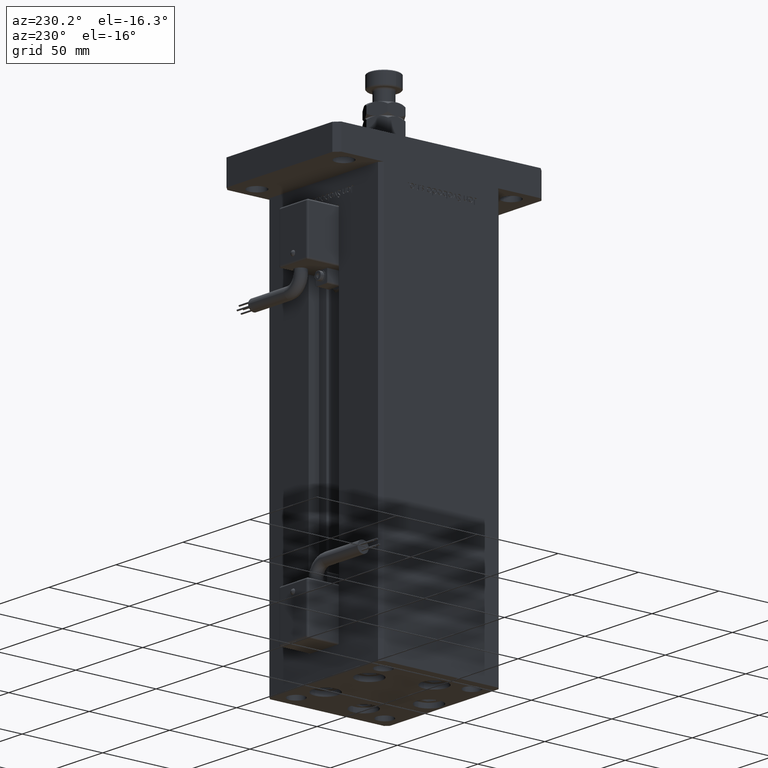
[diagram: clean part render]
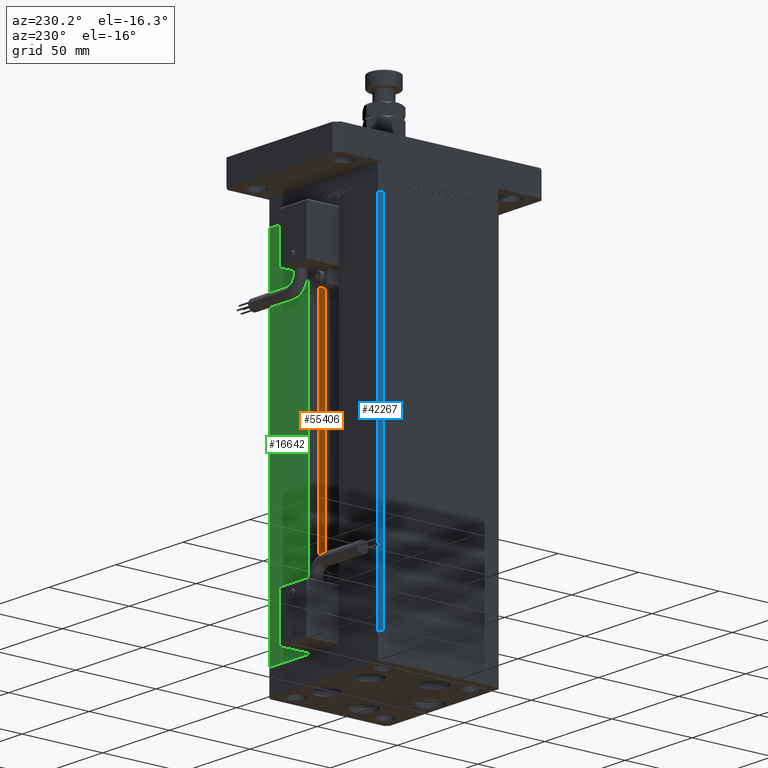
[diagram: same view with three faces highlighted in distinct colors, each labeled with its STEP entity id]
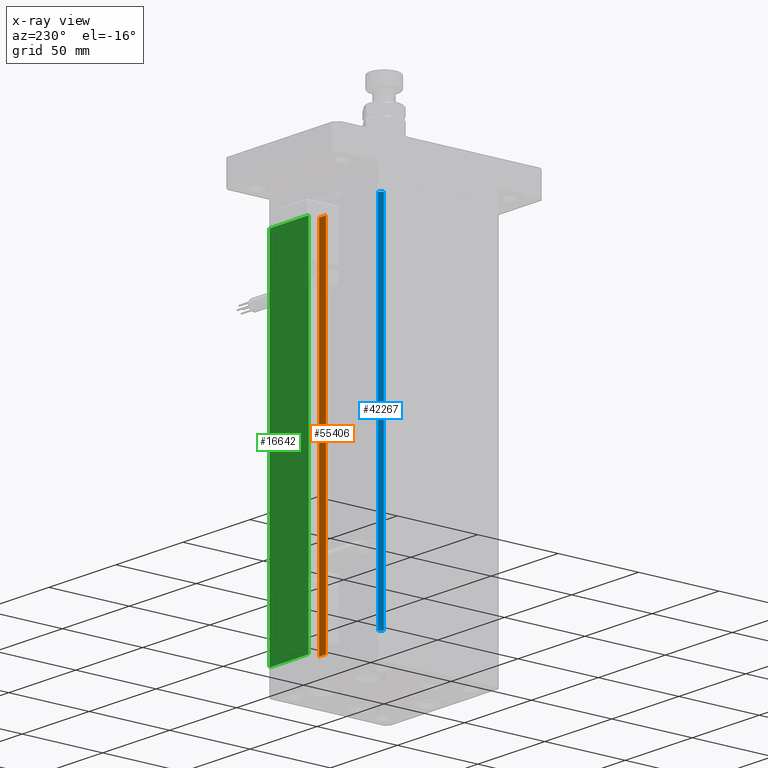
[diagram: x-ray of the same camera — body ghosted, the three highlighted faces saturated]
A machine part, auxiliary view with three faces highlighted in distinct colors.
The next image is the same camera in x-ray (body ghosted, the three faces saturated) — at least one of them is partly hidden behind the body in this view.
Their STEP definitions:

[orange] entity #55406 — the highlighted planar face has unit normal (0, -1, 0).
#752 = VECTOR ( 'NONE', #44271, 1000.000000000000000 ) ;
#2390 = CARTESIAN_POINT ( 'NONE',  ( 0.000000000000000000, 30.99999999999999289, 218.5000000000000000 ) ) ;
#6218 = DIRECTION ( 'NONE',  ( -1.000000000000000000, 0.000000000000000000, 0.000000000000000000 ) ) ;
#6754 = LINE ( 'NONE', #16478, #19839 ) ;
#8770 = ORIENTED_EDGE ( 'NONE', *, *, #24042, .F. ) ;
#8798 = CARTESIAN_POINT ( 'NONE',  ( 6.183333333333999704, 30.99999999999999289, 0.000000000000000000 ) ) ;
#10150 = VECTOR ( 'NONE', #6218, 1000.000000000000000 ) ;
#11636 = VERTEX_POINT ( 'NONE', #38229 ) ;
#12286 = AXIS2_PLACEMENT_3D ( 'NONE', #34521, #15987, #21262 ) ;
#14885 = FACE_OUTER_BOUND ( 'NONE', #29583, .T. ) ;
#15131 = VECTOR ( 'NONE', #32898, 1000.000000000000000 ) ;
#15987 = DIRECTION ( 'NONE',  ( 0.000000000000000000, -1.000000000000000000, 0.000000000000000000 ) ) ;
#16478 = CARTESIAN_POINT ( 'NONE',  ( 6.183333333333999704, 30.99999999999999289, 0.000000000000000000 ) ) ;
#17482 = CARTESIAN_POINT ( 'NONE',  ( 6.183333333333999704, 30.99999999999999289, 218.5000000000000000 ) ) ;
#19839 = VECTOR ( 'NONE', #47121, 1000.000000000000000 ) ;
#21262 = DIRECTION ( 'NONE',  ( 0.000000000000000000, -0.000000000000000000, -1.000000000000000000 ) ) ;
#24042 = EDGE_CURVE ( 'NONE', #53129, #54464, #33603, .T. ) ;
#24667 = ORIENTED_EDGE ( 'NONE', *, *, #33108, .F. ) ;
#28346 = CARTESIAN_POINT ( 'NONE',  ( 11.25000000000000000, 30.99999999999999289, 218.5000000000000000 ) ) ;
#29583 = EDGE_LOOP ( 'NONE', ( #57223, #24667, #50712, #8770 ) ) ;
#30440 = LINE ( 'NONE', #57273, #752 ) ;
#32898 = DIRECTION ( 'NONE',  ( 1.000000000000000000, 0.000000000000000000, 0.000000000000000000 ) ) ;
#33108 = EDGE_CURVE ( 'NONE', #42736, #11636, #47329, .T. ) ;
#33473 = CARTESIAN_POINT ( 'NONE',  ( 6.183333333333999704, 30.99999999999999289, 0.000000000000000000 ) ) ;
#33603 = LINE ( 'NONE', #2390, #10150 ) ;
#33882 = EDGE_CURVE ( 'NONE', #42736, #54464, #6754, .T. ) ;
#34521 = CARTESIAN_POINT ( 'NONE',  ( 6.183333333333999704, 30.99999999999999289, 0.000000000000000000 ) ) ;
#38229 = CARTESIAN_POINT ( 'NONE',  ( 11.25000000000000000, 30.99999999999999289, 0.000000000000000000 ) ) ;
#42736 = VERTEX_POINT ( 'NONE', #8798 ) ;
#44271 = DIRECTION ( 'NONE',  ( -0.000000000000000000, -0.000000000000000000, 1.000000000000000000 ) ) ;
#47121 = DIRECTION ( 'NONE',  ( -0.000000000000000000, -0.000000000000000000, 1.000000000000000000 ) ) ;
#47329 = LINE ( 'NONE', #33473, #15131 ) ;
#47788 = PLANE ( 'NONE',  #12286 ) ;
#48422 = EDGE_CURVE ( 'NONE', #11636, #53129, #30440, .T. ) ;
#50712 = ORIENTED_EDGE ( 'NONE', *, *, #33882, .T. ) ;
#53129 = VERTEX_POINT ( 'NONE', #28346 ) ;
#54464 = VERTEX_POINT ( 'NONE', #17482 ) ;
#55406 = ADVANCED_FACE ( 'NONE', ( #14885 ), #47788, .F. ) ;
#57223 = ORIENTED_EDGE ( 'NONE', *, *, #48422, .F. ) ;
#57273 = CARTESIAN_POINT ( 'NONE',  ( 11.25000000000000000, 30.99999999999999289, 0.000000000000000000 ) ) ;

[blue] entity #42267 — the highlighted planar face has unit normal (0.7071, -0.7071, 0).
#4178 = EDGE_CURVE ( 'NONE', #49045, #9012, #44664, .T. ) ;
#4327 = DIRECTION ( 'NONE',  ( -0.7071067811865500152, -0.7071067811865451302, 0.000000000000000000 ) ) ;
#6487 = ORIENTED_EDGE ( 'NONE', *, *, #4178, .F. ) ;
#6890 = CARTESIAN_POINT ( 'NONE',  ( -40.50000000000000000, 37.50000000000000711, 218.5000000000000000 ) ) ;
#9012 = VERTEX_POINT ( 'NONE', #37007 ) ;
#9291 = DIRECTION ( 'NONE',  ( 0.7071067811865450192, -0.7071067811865500152, 0.000000000000000000 ) ) ;
#11207 = DIRECTION ( 'NONE',  ( -0.7071067811865500152, -0.7071067811865451302, 0.000000000000000000 ) ) ;
#11389 = EDGE_CURVE ( 'NONE', #52483, #55725, #56586, .T. ) ;
#11788 = CARTESIAN_POINT ( 'NONE',  ( -40.50000000000000000, 37.50000000000000711, 0.000000000000000000 ) ) ;
#12055 = CARTESIAN_POINT ( 'NONE',  ( -40.50000000000000000, 37.50000000000000711, 0.000000000000000000 ) ) ;
#13711 = PLANE ( 'NONE',  #45653 ) ;
#15430 = EDGE_CURVE ( 'NONE', #49045, #52483, #57553, .T. ) ;
#19021 = DIRECTION ( 'NONE',  ( 0.7071067811865500152, 0.7071067811865450192, 0.000000000000000000 ) ) ;
#21058 = ORIENTED_EDGE ( 'NONE', *, *, #41689, .F. ) ;
#22548 = FACE_OUTER_BOUND ( 'NONE', #55037, .T. ) ;
#26267 = DIRECTION ( 'NONE',  ( -0.000000000000000000, -0.000000000000000000, -1.000000000000000000 ) ) ;
#27674 = VECTOR ( 'NONE', #26267, 1000.000000000000000 ) ;
#28266 = CARTESIAN_POINT ( 'NONE',  ( -42.50000000000000711, 35.50000000000001421, 218.5000000000000000 ) ) ;
#29445 = CARTESIAN_POINT ( 'NONE',  ( -42.50000000000000711, 35.50000000000001421, 0.000000000000000000 ) ) ;
#30983 = VECTOR ( 'NONE', #4327, 1000.000000000000114 ) ;
#32690 = LINE ( 'NONE', #28266, #56962 ) ;
#34554 = CARTESIAN_POINT ( 'NONE',  ( -40.50000000000000000, 37.50000000000000711, 218.5000000000000000 ) ) ;
#34986 = CARTESIAN_POINT ( 'NONE',  ( -40.50000000000000000, 37.50000000000000711, 218.5000000000000000 ) ) ;
#37007 = CARTESIAN_POINT ( 'NONE',  ( -42.50000000000000711, 35.50000000000001421, 218.5000000000000000 ) ) ;
#38238 = VECTOR ( 'NONE', #11207, 1000.000000000000114 ) ;
#41689 = EDGE_CURVE ( 'NONE', #9012, #55725, #32690, .T. ) ;
#41826 = DIRECTION ( 'NONE',  ( -0.000000000000000000, -0.000000000000000000, -1.000000000000000000 ) ) ;
#42267 = ADVANCED_FACE ( 'NONE', ( #22548 ), #13711, .F. ) ;
#44664 = LINE ( 'NONE', #34986, #30983 ) ;
#45653 = AXIS2_PLACEMENT_3D ( 'NONE', #54087, #9291, #19021 ) ;
#49045 = VERTEX_POINT ( 'NONE', #6890 ) ;
#49942 = ORIENTED_EDGE ( 'NONE', *, *, #11389, .T. ) ;
#50263 = ORIENTED_EDGE ( 'NONE', *, *, #15430, .T. ) ;
#52483 = VERTEX_POINT ( 'NONE', #12055 ) ;
#54087 = CARTESIAN_POINT ( 'NONE',  ( -40.50000000000000000, 37.50000000000000711, 218.5000000000000000 ) ) ;
#55037 = EDGE_LOOP ( 'NONE', ( #49942, #21058, #6487, #50263 ) ) ;
#55725 = VERTEX_POINT ( 'NONE', #29445 ) ;
#56586 = LINE ( 'NONE', #11788, #38238 ) ;
#56962 = VECTOR ( 'NONE', #41826, 1000.000000000000000 ) ;
#57553 = LINE ( 'NONE', #34554, #27674 ) ;

[green] entity #16642 — the highlighted planar face has unit normal (-0, -1, 0).
#477 = VECTOR ( 'NONE', #49943, 1000.000000000000000 ) ;
#976 = ORIENTED_EDGE ( 'NONE', *, *, #43485, .T. ) ;
#1481 = FACE_OUTER_BOUND ( 'NONE', #33917, .T. ) ;
#4917 = DIRECTION ( 'NONE',  ( -0.000000000000000000, -0.000000000000000000, -1.000000000000000000 ) ) ;
#5199 = CARTESIAN_POINT ( 'NONE',  ( 40.50000000000000000, 37.50000000000000711, 218.5000000000000000 ) ) ;
#6582 = CARTESIAN_POINT ( 'NONE',  ( 40.50000000000000000, 37.50000000000000711, 218.5000000000000000 ) ) ;
#7228 = DIRECTION ( 'NONE',  ( -1.000000000000000000, 2.372271420139223331E-16, 0.000000000000000000 ) ) ;
#7978 = AXIS2_PLACEMENT_3D ( 'NONE', #50380, #23844, #32988 ) ;
#9524 = LINE ( 'NONE', #14235, #36010 ) ;
#9672 = CARTESIAN_POINT ( 'NONE',  ( 11.25000000000000000, 37.50000000000000000, 0.000000000000000000 ) ) ;
#10105 = EDGE_CURVE ( 'NONE', #55959, #36190, #9524, .T. ) ;
#10995 = ORIENTED_EDGE ( 'NONE', *, *, #22177, .T. ) ;
#11070 = LINE ( 'NONE', #47594, #33619 ) ;
#14235 = CARTESIAN_POINT ( 'NONE',  ( 11.25000000000000000, 37.50000000000000000, 0.000000000000000000 ) ) ;
#14295 = LINE ( 'NONE', #54366, #477 ) ;
#14549 = VERTEX_POINT ( 'NONE', #6582 ) ;
#16642 = ADVANCED_FACE ( 'NONE', ( #1481 ), #23553, .F. ) ;
#17416 = EDGE_CURVE ( 'NONE', #36190, #14549, #14295, .T. ) ;
#17682 = CARTESIAN_POINT ( 'NONE',  ( 11.24999999999999289, 37.50000000000000000, 218.5000000000000000 ) ) ;
#22177 = EDGE_CURVE ( 'NONE', #25324, #55959, #11070, .T. ) ;
#23553 = PLANE ( 'NONE',  #7978 ) ;
#23844 = DIRECTION ( 'NONE',  ( -2.372271420139223824E-16, -1.000000000000000000, 0.000000000000000000 ) ) ;
#25324 = VERTEX_POINT ( 'NONE', #54725 ) ;
#28634 = DIRECTION ( 'NONE',  ( -0.000000000000000000, -0.000000000000000000, 1.000000000000000000 ) ) ;
#32988 = DIRECTION ( 'NONE',  ( 1.000000000000000000, -2.372271420139223824E-16, 0.000000000000000000 ) ) ;
#33619 = VECTOR ( 'NONE', #7228, 1000.000000000000000 ) ;
#33917 = EDGE_LOOP ( 'NONE', ( #10995, #57974, #42103, #976 ) ) ;
#36010 = VECTOR ( 'NONE', #28634, 1000.000000000000000 ) ;
#36190 = VERTEX_POINT ( 'NONE', #17682 ) ;
#36322 = VECTOR ( 'NONE', #4917, 1000.000000000000000 ) ;
#42103 = ORIENTED_EDGE ( 'NONE', *, *, #17416, .T. ) ;
#43485 = EDGE_CURVE ( 'NONE', #14549, #25324, #53257, .T. ) ;
#47594 = CARTESIAN_POINT ( 'NONE',  ( -11.25000000000000000, 37.50000000000000000, 0.000000000000000000 ) ) ;
#49943 = DIRECTION ( 'NONE',  ( 1.000000000000000000, 0.000000000000000000, 0.000000000000000000 ) ) ;
#50380 = CARTESIAN_POINT ( 'NONE',  ( -11.25000000000000000, 37.50000000000000000, 218.5000000000000000 ) ) ;
#53257 = LINE ( 'NONE', #5199, #36322 ) ;
#54366 = CARTESIAN_POINT ( 'NONE',  ( -11.25000000000000000, 37.50000000000000000, 218.5000000000000000 ) ) ;
#54725 = CARTESIAN_POINT ( 'NONE',  ( 40.50000000000000000, 37.50000000000000711, 0.000000000000000000 ) ) ;
#55959 = VERTEX_POINT ( 'NONE', #9672 ) ;
#57974 = ORIENTED_EDGE ( 'NONE', *, *, #10105, .T. ) ;